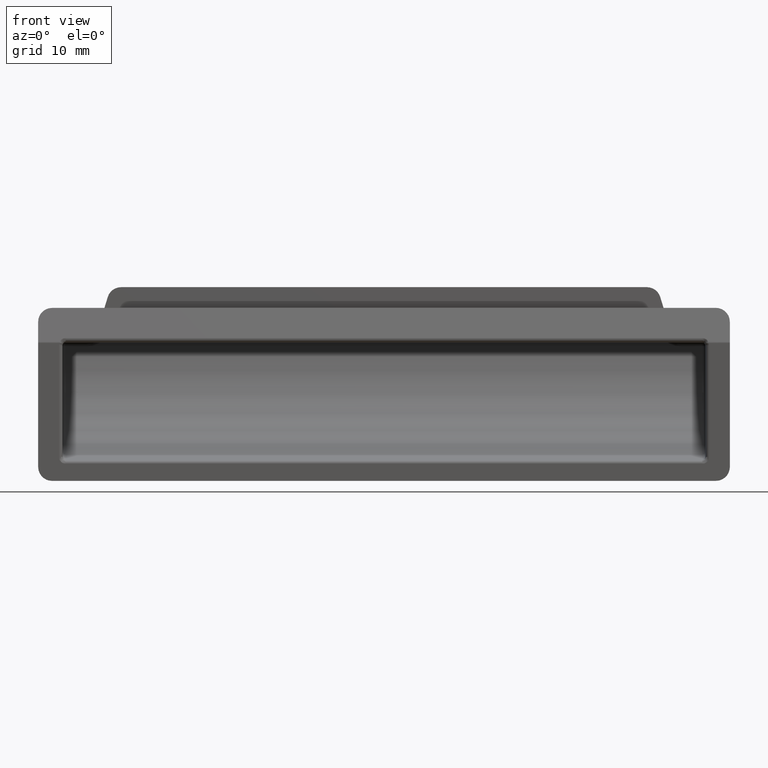
[diagram: clean part render]
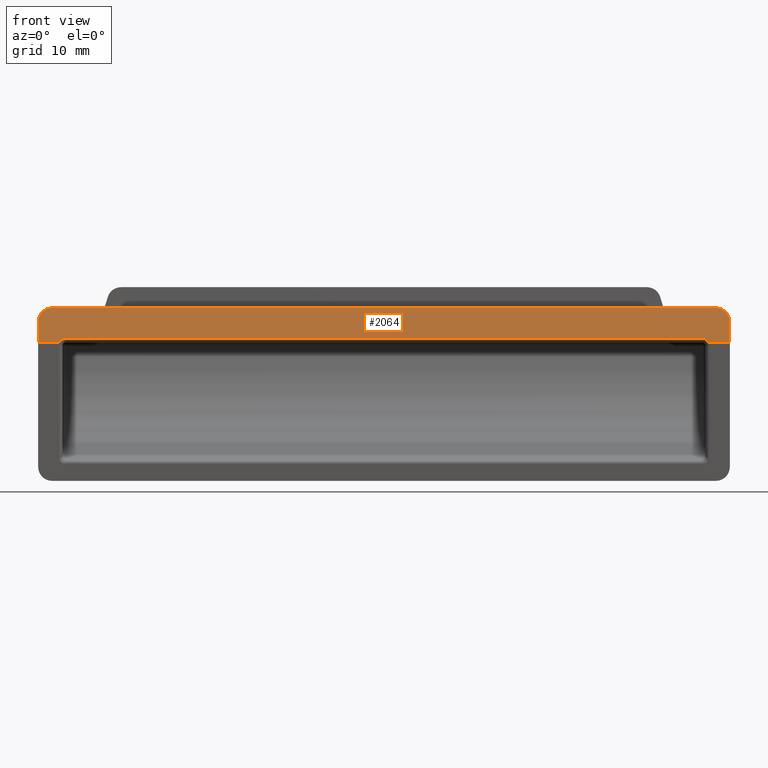
[diagram: same view with one face highlighted and labeled with its STEP entity id]
A machine part, front view. The second image highlights one B-rep face of the part: STEP entity #2064.
In plain terms, the highlighted planar face has unit normal (0, -0.9578, 0.2873).
Its self-contained STEP definition (entity closure, byte-faithful):
#42 = CARTESIAN_POINT ( 'NONE',  ( 50.00000000000000000, -2.100000000000000100, -5.000000000000000000 ) ) ;
#92 = CARTESIAN_POINT ( 'NONE',  ( -50.00000000000000000, -0.5504587155965000600, 0.1651376146789295100 ) ) ;
#184 = CARTESIAN_POINT ( 'NONE',  ( -48.00000000000000000, -1.500000000000000000, -3.000000000000000000 ) ) ;
#222 = ORIENTED_EDGE ( 'NONE', *, *, #1213, .T. ) ;
#244 = VECTOR ( 'NONE', #466, 1000.000000000000200 ) ;
#248 = CARTESIAN_POINT ( 'NONE',  ( 950.0000000000000000, -2.999999999999900500, -8.000000000000101300 ) ) ;
#278 = AXIS2_PLACEMENT_3D ( 'NONE', #248, #1081, #2557 ) ;
#313 = FACE_OUTER_BOUND ( 'NONE', #357, .T. ) ;
#320 = CARTESIAN_POINT ( 'NONE',  ( -46.00000000000000000, -2.806897817164949700, -7.356326057216839400 ) ) ;
#344 = CARTESIAN_POINT ( 'NONE',  ( 50.00000000000000000, -2.100000000000000100, -5.000000000000000000 ) ) ;
#357 = EDGE_LOOP ( 'NONE', ( #975, #222, #784, #1895, #2457, #1326, #2525, #1393, #2387, #1963 ) ) ;
#384 = CARTESIAN_POINT ( 'NONE',  ( 50.00000000000000000, -0.5504587155965000600, 0.1651376146789295100 ) ) ;
#386 = VERTEX_POINT ( 'NONE', #1716 ) ;
#460 =( BOUNDED_CURVE ( )  B_SPLINE_CURVE ( 3, ( #184, #2689, #2654, #2621 ),
 .UNSPECIFIED., .F., .F. ) 
 B_SPLINE_CURVE_WITH_KNOTS ( ( 4, 4 ),
 ( 0.0000000000000000000, 1.570796326794896600 ),
 .UNSPECIFIED. ) 
 CURVE ( )  GEOMETRIC_REPRESENTATION_ITEM ( )  RATIONAL_B_SPLINE_CURVE ( ( 1.000000000000000000, 0.8047378541243649400, 0.8047378541243649400, 1.000000000000000000 ) ) 
 REPRESENTATION_ITEM ( '' )  );
#466 = DIRECTION ( 'NONE',  ( 0.0000000000000000000, 0.2873478855663125800, 0.9578262852211612000 ) ) ;
#484 = LINE ( 'NONE', #895, #1498 ) ;
#554 = CARTESIAN_POINT ( 'NONE',  ( -48.00000000000000000, -1.500000000000000000, -3.000000000000000000 ) ) ;
#615 =( BOUNDED_CURVE ( )  B_SPLINE_CURVE ( 3, ( #344, #1010, #866, #2544 ),
 .UNSPECIFIED., .F., .F. ) 
 B_SPLINE_CURVE_WITH_KNOTS ( ( 4, 4 ),
 ( 1.570796326794896600, 3.141592653589793100 ),
 .UNSPECIFIED. ) 
 CURVE ( )  GEOMETRIC_REPRESENTATION_ITEM ( )  RATIONAL_B_SPLINE_CURVE ( ( 1.000000000000000000, 0.8047378541243649400, 0.8047378541243649400, 1.000000000000000000 ) ) 
 REPRESENTATION_ITEM ( '' )  );
#664 = PLANE ( 'NONE',  #278 ) ;
#678 = CARTESIAN_POINT ( 'NONE',  ( 950.0000000000000000, -2.973386655118745100, -7.911288850396229800 ) ) ;
#784 = ORIENTED_EDGE ( 'NONE', *, *, #1432, .T. ) ;
#804 = CARTESIAN_POINT ( 'NONE',  ( -46.72186160749089400, -2.868559849907436700, -7.561866166358505800 ) ) ;
#864 = CARTESIAN_POINT ( 'NONE',  ( 950.0000000000000000, -2.806897817164949700, -7.356326057216839400 ) ) ;
#866 = CARTESIAN_POINT ( 'NONE',  ( 49.17157287525381500, -1.500000000000073700, -2.999999999999998700 ) ) ;
#895 = CARTESIAN_POINT ( 'NONE',  ( 950.0000000000000000, -2.973386655118745100, -7.911288850396229800 ) ) ;
#903 = VERTEX_POINT ( 'NONE', #2677 ) ;
#915 = EDGE_CURVE ( 'NONE', #1112, #1649, #460, .T. ) ;
#926 = VECTOR ( 'NONE', #2115, 1000.000000000000000 ) ;
#975 = ORIENTED_EDGE ( 'NONE', *, *, #1033, .F. ) ;
#977 = CARTESIAN_POINT ( 'NONE',  ( 46.00000000000000000, -2.806897817164949700, -7.356326057216839400 ) ) ;
#1000 = CARTESIAN_POINT ( 'NONE',  ( -50.00000000000000000, -2.100000000000000100, -5.000000000000000000 ) ) ;
#1010 = CARTESIAN_POINT ( 'NONE',  ( 50.00000000000000000, -1.748528137423900600, -3.828427124746189000 ) ) ;
#1033 = EDGE_CURVE ( 'NONE', #1037, #1649, #2278, .T. ) ;
#1037 = VERTEX_POINT ( 'NONE', #1375 ) ;
#1081 = DIRECTION ( 'NONE',  ( 0.0000000000000000000, -0.9578262852211612000, 0.2873478855663125800 ) ) ;
#1112 = VERTEX_POINT ( 'NONE', #554 ) ;
#1180 = DIRECTION ( 'NONE',  ( 1.000000000000000000, -0.0000000000000000000, -0.0000000000000000000 ) ) ;
#1213 = EDGE_CURVE ( 'NONE', #1037, #903, #1883, .T. ) ;
#1269 = CARTESIAN_POINT ( 'NONE',  ( 46.89551207950840000, -2.973386655118745100, -7.911288850396240400 ) ) ;
#1326 = ORIENTED_EDGE ( 'NONE', *, *, #1732, .T. ) ;
#1363 = DIRECTION ( 'NONE',  ( 1.000000000000000000, -0.0000000000000000000, -0.0000000000000000000 ) ) ;
#1368 = DIRECTION ( 'NONE',  ( 0.0000000000000000000, 0.2873478855663125800, 0.9578262852211612000 ) ) ;
#1375 = CARTESIAN_POINT ( 'NONE',  ( -50.00000000000000000, -2.973386655118745100, -7.911288850396229800 ) ) ;
#1393 = ORIENTED_EDGE ( 'NONE', *, *, #1956, .T. ) ;
#1399 = CARTESIAN_POINT ( 'NONE',  ( 46.00000000000000000, -2.806897817164949700, -7.356326057216839400 ) ) ;
#1403 = CARTESIAN_POINT ( 'NONE',  ( 46.39019315543971100, -2.806897817164947900, -7.356326057216851000 ) ) ;
#1432 = EDGE_CURVE ( 'NONE', #903, #2705, #2486, .T. ) ;
#1498 = VECTOR ( 'NONE', #1363, 1000.000000000000000 ) ;
#1570 =( BOUNDED_CURVE ( )  B_SPLINE_CURVE ( 3, ( #977, #1403, #1574, #2639 ),
 .UNSPECIFIED., .F., .F. ) 
 B_SPLINE_CURVE_WITH_KNOTS ( ( 4, 4 ),
 ( 0.0000000000000000000, 1.109580518294483300 ),
 .UNSPECIFIED. ) 
 CURVE ( )  GEOMETRIC_REPRESENTATION_ITEM ( )  RATIONAL_B_SPLINE_CURVE ( ( 1.000000000000000000, 0.9000072954080533500, 0.9000072954080533500, 1.000000000000000000 ) ) 
 REPRESENTATION_ITEM ( '' )  );
#1574 = CARTESIAN_POINT ( 'NONE',  ( 46.72186160749093600, -2.868559849907442500, -7.561866166358522700 ) ) ;
#1610 = EDGE_CURVE ( 'NONE', #2649, #2068, #2335, .T. ) ;
#1649 = VERTEX_POINT ( 'NONE', #1000 ) ;
#1653 = CARTESIAN_POINT ( 'NONE',  ( -46.00000000000000000, -2.806897817164949700, -7.356326057216839400 ) ) ;
#1665 = LINE ( 'NONE', #1901, #2166 ) ;
#1716 = CARTESIAN_POINT ( 'NONE',  ( 48.00000000000000000, -1.500000000000000000, -3.000000000000000000 ) ) ;
#1732 = EDGE_CURVE ( 'NONE', #2492, #2649, #484, .T. ) ;
#1820 = VECTOR ( 'NONE', #1180, 1000.000000000000000 ) ;
#1841 = CARTESIAN_POINT ( 'NONE',  ( -46.39019315543970400, -2.806897817164947900, -7.356326057216851000 ) ) ;
#1883 = LINE ( 'NONE', #678, #1820 ) ;
#1895 = ORIENTED_EDGE ( 'NONE', *, *, #2056, .T. ) ;
#1901 = CARTESIAN_POINT ( 'NONE',  ( 950.0000000000000000, -1.500000000000000000, -3.000000000000000000 ) ) ;
#1902 = EDGE_CURVE ( 'NONE', #2151, #2492, #1570, .T. ) ;
#1956 = EDGE_CURVE ( 'NONE', #2068, #386, #615, .T. ) ;
#1963 = ORIENTED_EDGE ( 'NONE', *, *, #915, .T. ) ;
#2056 = EDGE_CURVE ( 'NONE', #2705, #2151, #2609, .T. ) ;
#2064 = ADVANCED_FACE ( 'NONE', ( #313 ), #664, .T. ) ;
#2068 = VERTEX_POINT ( 'NONE', #42 ) ;
#2104 = DIRECTION ( 'NONE',  ( -1.000000000000000000, 0.0000000000000000000, 0.0000000000000000000 ) ) ;
#2115 = DIRECTION ( 'NONE',  ( 1.000000000000000000, -0.0000000000000000000, -0.0000000000000000000 ) ) ;
#2148 = VECTOR ( 'NONE', #1368, 1000.000000000000200 ) ;
#2151 = VERTEX_POINT ( 'NONE', #1399 ) ;
#2166 = VECTOR ( 'NONE', #2104, 1000.000000000000000 ) ;
#2278 = LINE ( 'NONE', #92, #2148 ) ;
#2312 = CARTESIAN_POINT ( 'NONE',  ( -46.89551207950830000, -2.973386655118745100, -7.911288850396229800 ) ) ;
#2335 = LINE ( 'NONE', #384, #244 ) ;
#2387 = ORIENTED_EDGE ( 'NONE', *, *, #2425, .T. ) ;
#2425 = EDGE_CURVE ( 'NONE', #386, #1112, #1665, .T. ) ;
#2457 = ORIENTED_EDGE ( 'NONE', *, *, #1902, .T. ) ;
#2486 =( BOUNDED_CURVE ( )  B_SPLINE_CURVE ( 3, ( #2312, #804, #1841, #1653 ),
 .UNSPECIFIED., .F., .F. ) 
 B_SPLINE_CURVE_WITH_KNOTS ( ( 4, 4 ),
 ( 2.032012135295361100, 3.141592653589793100 ),
 .UNSPECIFIED. ) 
 CURVE ( )  GEOMETRIC_REPRESENTATION_ITEM ( )  RATIONAL_B_SPLINE_CURVE ( ( 1.000000000000000000, 0.9000072954080625700, 0.9000072954080625700, 1.000000000000000000 ) ) 
 REPRESENTATION_ITEM ( '' )  );
#2492 = VERTEX_POINT ( 'NONE', #1269 ) ;
#2525 = ORIENTED_EDGE ( 'NONE', *, *, #1610, .T. ) ;
#2544 = CARTESIAN_POINT ( 'NONE',  ( 48.00000000000000000, -1.500000000000000000, -3.000000000000000000 ) ) ;
#2545 = CARTESIAN_POINT ( 'NONE',  ( 50.00000000000000000, -2.973386655118745100, -7.911288850396229800 ) ) ;
#2557 = DIRECTION ( 'NONE',  ( 0.0000000000000000000, -0.2873478855663125800, -0.9578262852211612000 ) ) ;
#2609 = LINE ( 'NONE', #864, #926 ) ;
#2621 = CARTESIAN_POINT ( 'NONE',  ( -50.00000000000000000, -2.100000000000000100, -5.000000000000000000 ) ) ;
#2639 = CARTESIAN_POINT ( 'NONE',  ( 46.89551207950840000, -2.973386655118745100, -7.911288850396240400 ) ) ;
#2649 = VERTEX_POINT ( 'NONE', #2545 ) ;
#2654 = CARTESIAN_POINT ( 'NONE',  ( -50.00000000000000000, -1.748528137423900600, -3.828427124746189000 ) ) ;
#2677 = CARTESIAN_POINT ( 'NONE',  ( -46.89551207950830000, -2.973386655118745100, -7.911288850396229800 ) ) ;
#2689 = CARTESIAN_POINT ( 'NONE',  ( -49.17157287525381500, -1.500000000000073700, -2.999999999999998700 ) ) ;
#2705 = VERTEX_POINT ( 'NONE', #320 ) ;